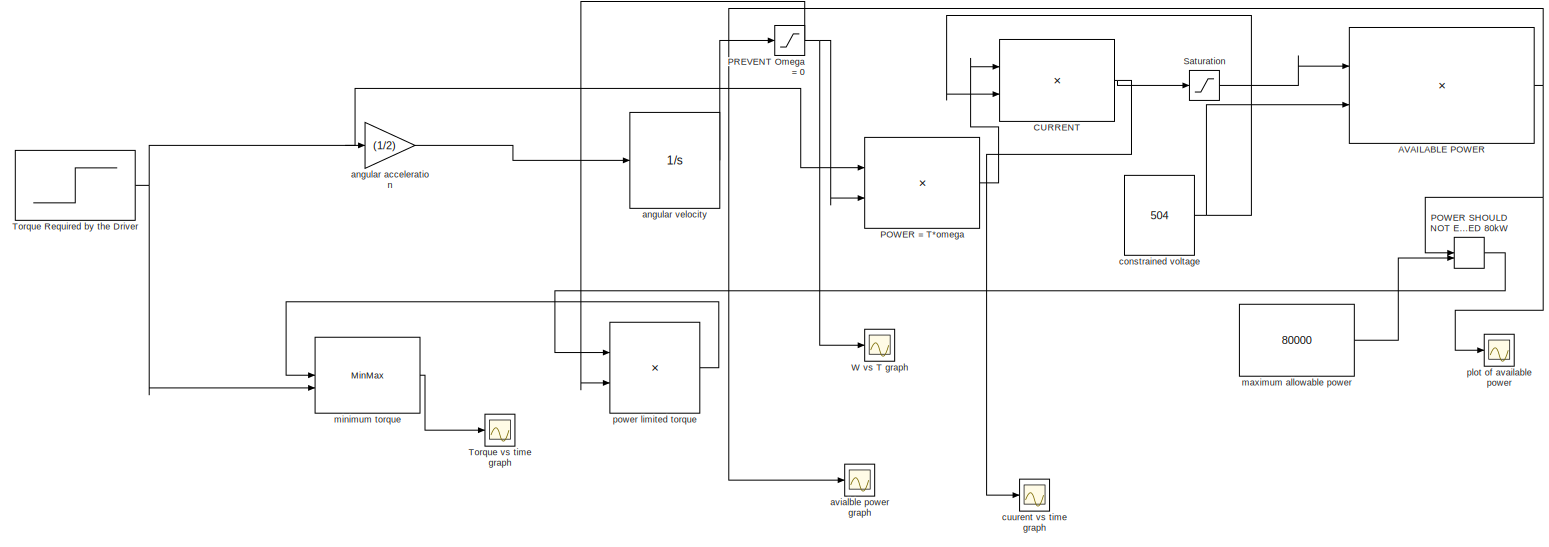
[diagram: root canvas - part 1/1, most of the canvas]
MODEL slx_d446f6691bdb
KIND model
CONFIG AbsTol = auto
CONFIG EnableMultiTasking = off
CONFIG FixedStep = auto
CONFIG MaxStep = auto
CONFIG MinStep = auto
CONFIG RelTol = 1e-3
CONFIG SampleTimeConstraint = Unconstrained
CONFIG SolverName = VariableStepAuto
CONFIG StartTime = 0.0
CONFIG StopTime = 20
BLOCK [Product] AVAILABLE POWER
BLOCK [Product] CURRENT
  Inputs = */
BLOCK [Product] POWER = T*omega
BLOCK [MinMax] POWER SHOULD NOT EXCEED 80kW
  Inputs = 2
BLOCK [Saturate] PREVENT Omega = 0
  LowerLimit = 0.1
  UpperLimit = 800
BLOCK [Saturate] Saturation
  LowerLimit = 0
  UpperLimit = 90
BLOCK [Step] Torque Required by the Driver
  After = 100
  SampleTime = 0
BLOCK [Scope] Torque vs time graph
  Floating = off
  NumInputPorts = 1
  ScopeSpecificationString = Simulink.scopes.TimeScopeBlockCfg('CurrentConfiguration', extmgr.ConfigurationSet(extmgr.Configuration('Core','General UI',true),extmgr.Configuration('Core','Source UI',true),extmgr.Configuration('Sources','WiredSimulink',true),extmgr.Configuration('Visuals','Time Domain',true,'SerializedDisplays',{struct('MinYLimReal','-12.5','MaxYLimReal','112.5','YLabelReal','','MinYLimMag','0.00000','MaxYLimMa...<+1439ch>
BLOCK [Scope] W vs T graph
  Floating = off
  NumInputPorts = 1
  ScopeSpecificationString = Simulink.scopes.TimeScopeBlockCfg('CurrentConfiguration', extmgr.ConfigurationSet(extmgr.Configuration('Core','General UI',true),extmgr.Configuration('Core','Source UI',true),extmgr.Configuration('Sources','WiredSimulink',true,'DataLoggingVariableName','ScopeData2'),extmgr.Configuration('Visuals','Time Domain',true,'SerializedDisplays',{struct('MinYLimReal','-99.8875','MaxYLimReal','899.9875','YLa...<+1499ch>
BLOCK [Gain] angular acceleration
  Gain = (1/2)
BLOCK [Integrator] angular velocity
BLOCK [Scope] avialble power graph
  Floating = off
  NumInputPorts = 1
  ScopeSpecificationString = Simulink.scopes.TimeScopeBlockCfg('CurrentConfiguration', extmgr.ConfigurationSet(extmgr.Configuration('Core','General UI',true),extmgr.Configuration('Core','Source UI',true),extmgr.Configuration('Sources','WiredSimulink',true,'DataLoggingVariableName','ScopeData1'),extmgr.Configuration('Visuals','Time Domain',true,'SerializedDisplays',{struct('MinYLimReal','-5670.00000','MaxYLimReal','51030.00000...<+1554ch>
BLOCK [Constant] constrained voltage
  Value = 504
BLOCK [Scope] cuurent vs time graph
  Floating = off
  NumInputPorts = 1
  ScopeSpecificationString = Simulink.scopes.TimeScopeBlockCfg('CurrentConfiguration', extmgr.ConfigurationSet(extmgr.Configuration('Core','General UI',true),extmgr.Configuration('Core','Source UI',true),extmgr.Configuration('Sources','WiredSimulink',true,'DataLoggingVariableName','ScopeData3'),extmgr.Configuration('Visuals','Time Domain',true,'SerializedDisplays',{struct('MinYLimReal','-19.84127','MaxYLimReal','178.57143','Y...<+1495ch>
BLOCK [Constant] maximum allowable power
  Value = 80000
BLOCK [MinMax] minimum torque
  Inputs = 2
BLOCK [Scope] plot of available power
  Floating = off
  NumInputPorts = 1
  ScopeSpecificationString = Simulink.scopes.TimeScopeBlockCfg('CurrentConfiguration', extmgr.ConfigurationSet(extmgr.Configuration('Core','General UI',true),extmgr.Configuration('Core','Source UI',true),extmgr.Configuration('Sources','WiredSimulink',true,'DataLoggingVariableName','ScopeData1'),extmgr.Configuration('Visuals','Time Domain',true,'SerializedDisplays',{struct('MinYLimReal','-5670.00000','MaxYLimReal','51030.00000...<+1519ch>
BLOCK [Product] power limited torque
  Inputs = */
NET AVAILABLE POWER:1 -> POWER SHOULD NOT EXCEED 80kW:1, avialble power graph:1, plot of available power:1
NET CURRENT:1 -> Saturation:1, cuurent vs time graph:1
LINE POWER = T*omega:1 -> CURRENT:1
LINE POWER SHOULD NOT EXCEED 80kW:1 -> power limited torque:1
NET PREVENT Omega = 0:1 -> POWER = T*omega:2, W vs T graph:1, power limited torque:2
LINE Saturation:1 -> AVAILABLE POWER:1
NET Torque Required by the Driver:1 -> POWER = T*omega:1, angular acceleration:1, minimum torque:2
LINE angular acceleration:1 -> angular velocity:1
LINE angular velocity:1 -> PREVENT Omega = 0:1
NET constrained voltage:1 -> AVAILABLE POWER:2, CURRENT:2
LINE maximum allowable power:1 -> POWER SHOULD NOT EXCEED 80kW:2
LINE minimum torque:1 -> Torque vs time graph:1
LINE power limited torque:1 -> minimum torque:1
note: NET lines group one-source signal fan-out (src -> all destinations, sorted); 1:1 wires keep LINE
